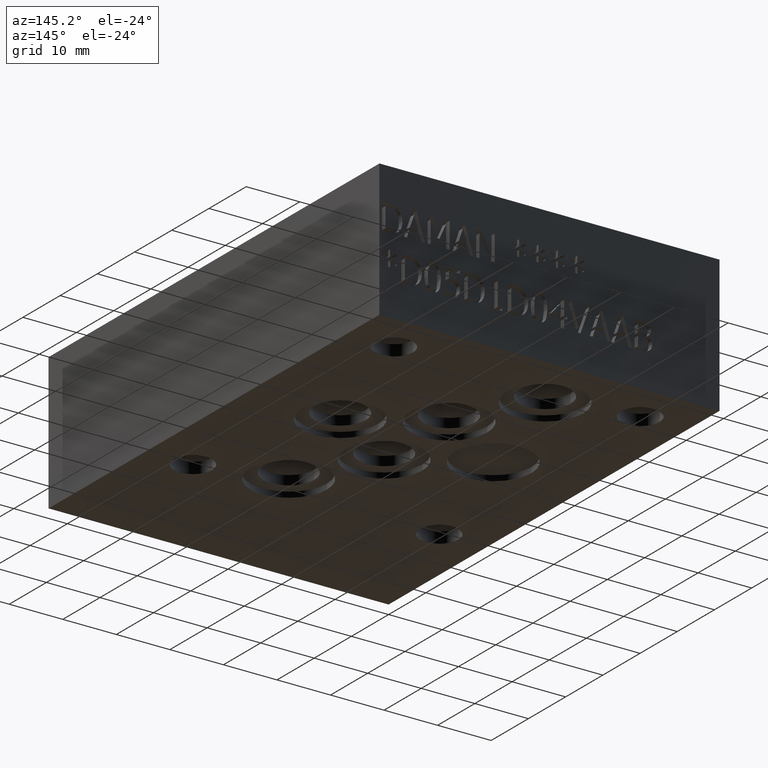
[diagram: clean part render]
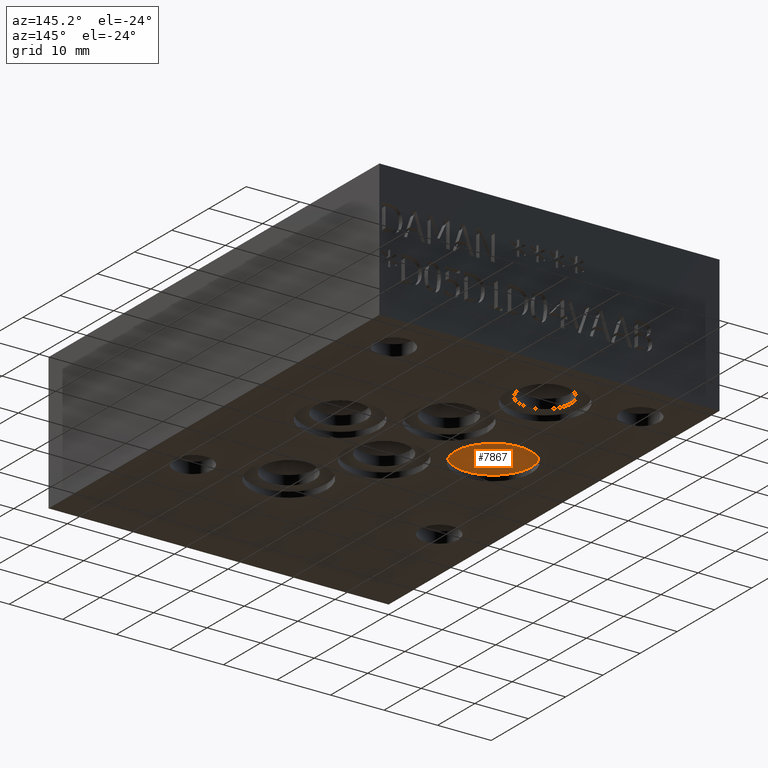
[diagram: same view with one face highlighted and labeled with its STEP entity id]
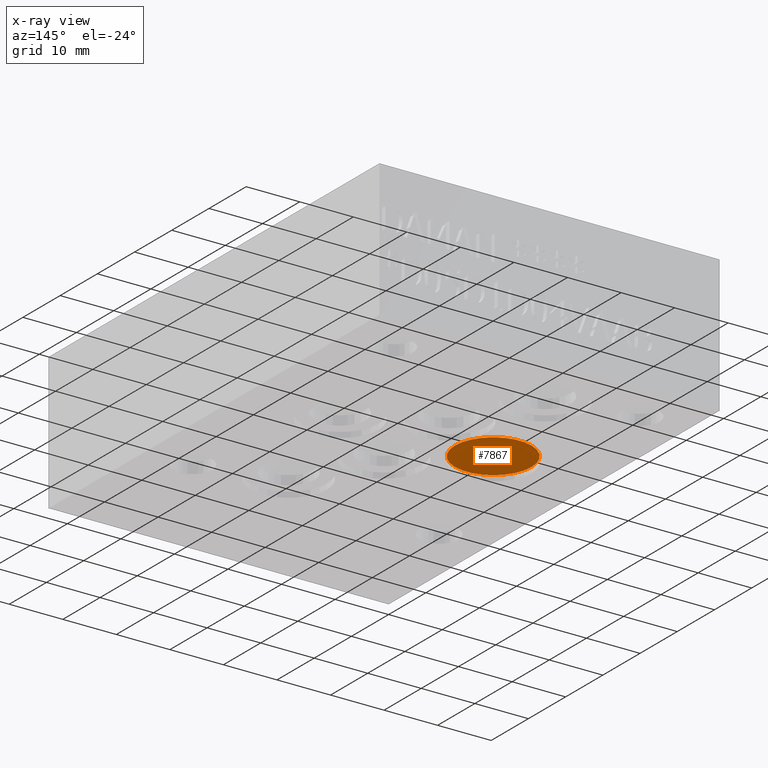
[diagram: x-ray of the same camera — body ghosted, the highlighted face saturated]
A machine part, auxiliary view. The second image highlights one B-rep face of the part: STEP entity #7867.
The next image is the same camera in x-ray: the body ghosted, the highlighted face saturated — about 0% of this face is hidden behind the body in this view.
In plain terms, the highlighted planar face has unit normal (0, 0, -1).
Its self-contained STEP definition (entity closure, byte-faithful):
#53=CIRCLE('',#8217,7.1374);
#54=CIRCLE('',#8218,7.1374);
#805=FACE_OUTER_BOUND('',#1241,.T.);
#1241=EDGE_LOOP('',(#6669,#6670));
#3593=VERTEX_POINT('',#13013);
#3594=VERTEX_POINT('',#13015);
#4646=EDGE_CURVE('',#3594,#3593,#53,.T.);
#4647=EDGE_CURVE('',#3593,#3594,#54,.T.);
#6669=ORIENTED_EDGE('',*,*,#4646,.T.);
#6670=ORIENTED_EDGE('',*,*,#4647,.T.);
#7170=PLANE('',#8219);
#7867=ADVANCED_FACE('',(#805),#7170,.T.);
#8217=AXIS2_PLACEMENT_3D('',#13016,#9690,#9691);
#8218=AXIS2_PLACEMENT_3D('',#13017,#9692,#9693);
#8219=AXIS2_PLACEMENT_3D('',#13018,#9694,#9695);
#9690=DIRECTION('center_axis',(0.,0.,-1.));
#9691=DIRECTION('ref_axis',(1.,0.,0.));
#9692=DIRECTION('center_axis',(0.,0.,-1.));
#9693=DIRECTION('ref_axis',(1.,0.,0.));
#9694=DIRECTION('center_axis',(0.,0.,-1.));
#9695=DIRECTION('ref_axis',(1.,0.,0.));
#13013=CARTESIAN_POINT('',(10.287,53.1876,1.016));
#13015=CARTESIAN_POINT('',(24.5618,53.1876,1.016));
#13016=CARTESIAN_POINT('Origin',(17.4244,53.1876,1.016));
#13017=CARTESIAN_POINT('Origin',(17.4244,53.1876,1.016));
#13018=CARTESIAN_POINT('Origin',(17.4244,53.1876,1.016));